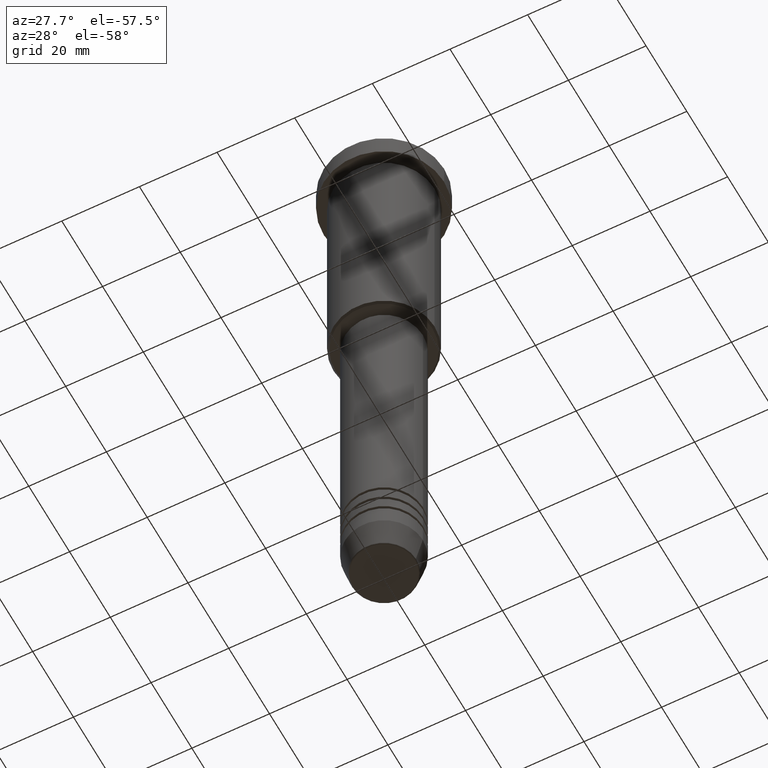
[diagram: clean part render]
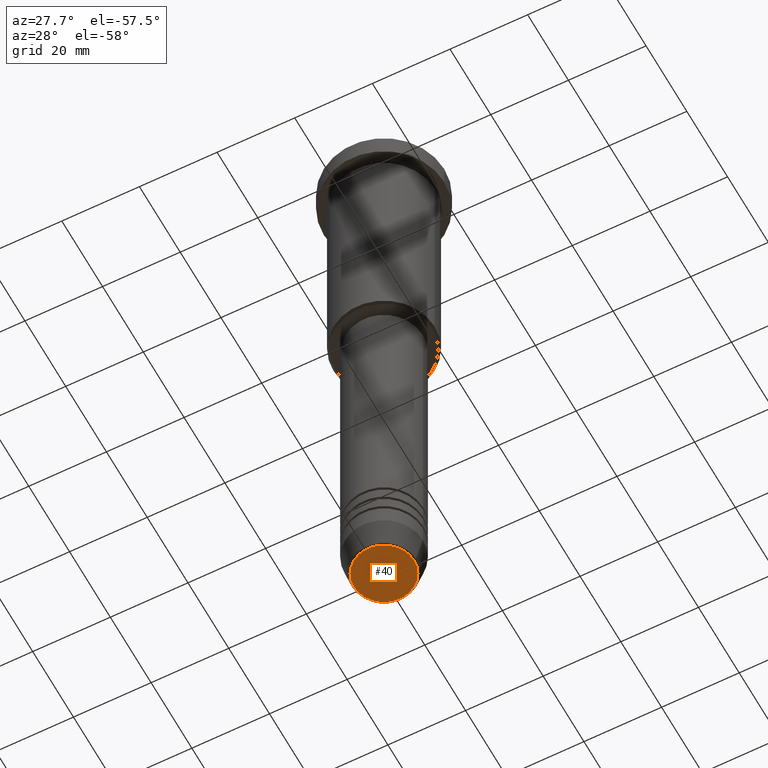
[diagram: same view with one face highlighted and labeled with its STEP entity id]
A machine part, auxiliary view. The second image highlights one B-rep face of the part: STEP entity #40.
In plain terms, the highlighted planar face has unit normal (0, -0, 1).
Its self-contained STEP definition (entity closure, byte-faithful):
#31 = VERTEX_POINT ( 'NONE', #1040 ) ;
#40 = ADVANCED_FACE ( 'NONE', ( #240 ), #235, .F. ) ;
#70 = AXIS2_PLACEMENT_3D ( 'NONE', #830, #837, #745 ) ;
#235 = PLANE ( 'NONE',  #549 ) ;
#240 = FACE_OUTER_BOUND ( 'NONE', #456, .T. ) ;
#244 = ORIENTED_EDGE ( 'NONE', *, *, #556, .T. ) ;
#277 = CARTESIAN_POINT ( 'NONE',  ( 7.740692158992660055, 0.000000000000000000, -161.0000000000000284 ) ) ;
#288 = ORIENTED_EDGE ( 'NONE', *, *, #348, .T. ) ;
#348 = EDGE_CURVE ( 'NONE', #31, #680, #592, .T. ) ;
#351 = DIRECTION ( 'NONE',  ( 0.000000000000000000, 0.000000000000000000, -1.000000000000000000 ) ) ;
#456 = EDGE_LOOP ( 'NONE', ( #244, #288 ) ) ;
#492 = CIRCLE ( 'NONE', #914, 7.740692158992660055 ) ;
#539 = CARTESIAN_POINT ( 'NONE',  ( 0.000000000000000000, 0.000000000000000000, -161.0000000000000284 ) ) ;
#549 = AXIS2_PLACEMENT_3D ( 'NONE', #1045, #963, #764 ) ;
#556 = EDGE_CURVE ( 'NONE', #680, #31, #492, .T. ) ;
#592 = CIRCLE ( 'NONE', #70, 7.740692158992660055 ) ;
#680 = VERTEX_POINT ( 'NONE', #277 ) ;
#745 = DIRECTION ( 'NONE',  ( 1.000000000000000000, 0.000000000000000000, 0.000000000000000000 ) ) ;
#764 = DIRECTION ( 'NONE',  ( 1.000000000000000000, 0.000000000000000000, 0.000000000000000000 ) ) ;
#830 = CARTESIAN_POINT ( 'NONE',  ( 0.000000000000000000, 0.000000000000000000, -161.0000000000000284 ) ) ;
#837 = DIRECTION ( 'NONE',  ( 0.000000000000000000, 0.000000000000000000, -1.000000000000000000 ) ) ;
#892 = DIRECTION ( 'NONE',  ( 1.000000000000000000, 0.000000000000000000, 0.000000000000000000 ) ) ;
#914 = AXIS2_PLACEMENT_3D ( 'NONE', #539, #351, #892 ) ;
#963 = DIRECTION ( 'NONE',  ( 0.000000000000000000, -0.000000000000000000, 1.000000000000000000 ) ) ;
#1040 = CARTESIAN_POINT ( 'NONE',  ( -7.740692158992660055, 9.775343368540039135E-16, -161.0000000000000284 ) ) ;
#1045 = CARTESIAN_POINT ( 'NONE',  ( 0.000000000000000000, 0.000000000000000000, -161.0000000000000284 ) ) ;